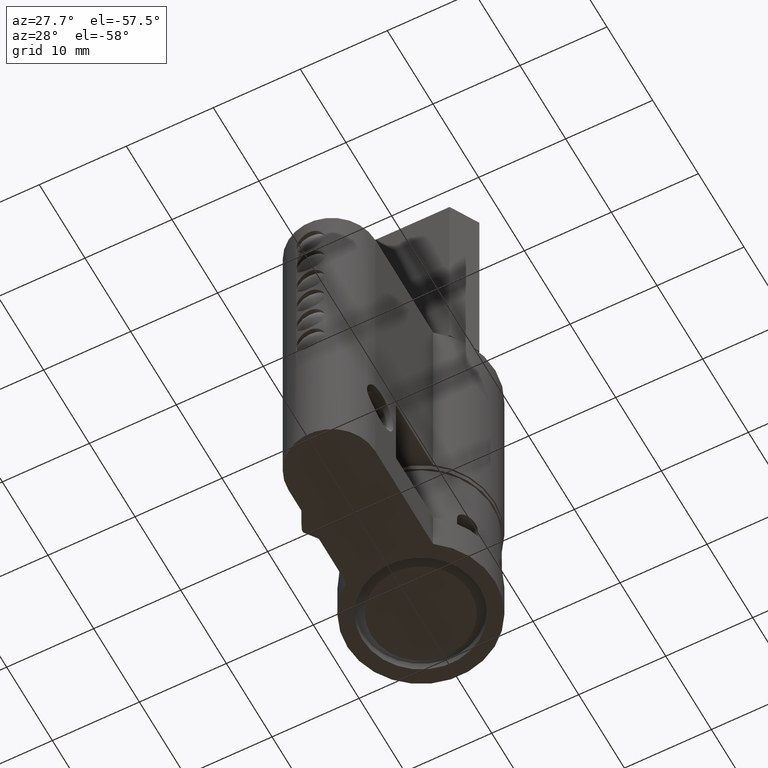
[diagram: clean part render]
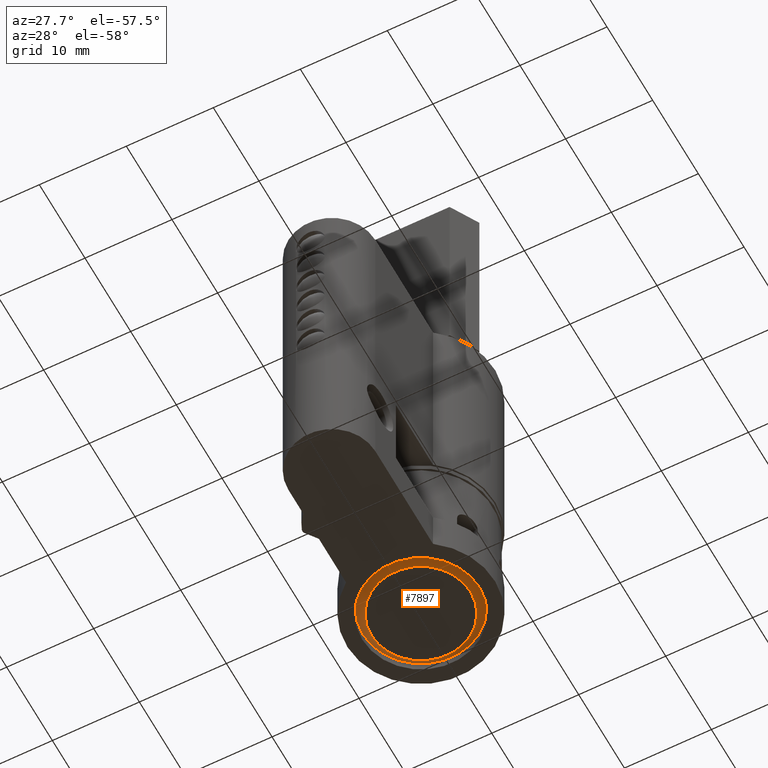
[diagram: same view with one face highlighted and labeled with its STEP entity id]
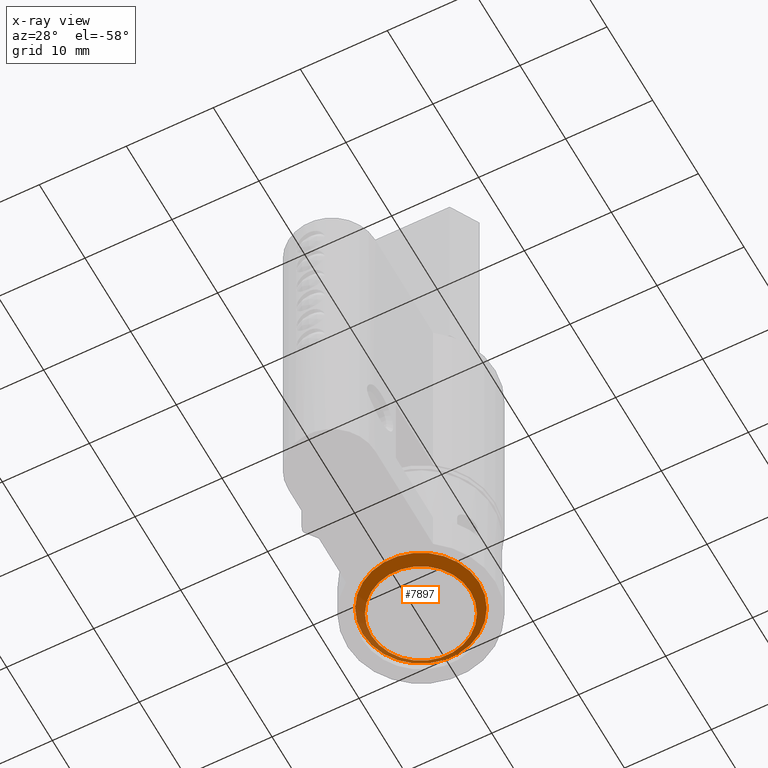
[diagram: x-ray of the same camera — body ghosted, the highlighted face saturated]
A machine part, auxiliary view. The second image highlights one B-rep face of the part: STEP entity #7897.
The next image is the same camera in x-ray: the body ghosted, the highlighted face saturated — about 0% of this face is hidden behind the body in this view.
In plain terms, the highlighted conical surface has half-angle 45 deg.
Its self-contained STEP definition (entity closure, byte-faithful):
#27 = DIRECTION ( 'NONE',  ( 0.0000000000000000000, 0.0000000000000000000, 1.000000000000000000 ) ) ;
#499 = CARTESIAN_POINT ( 'NONE',  ( 0.0000000000000000000, -4.974888019733982900E-015, -19.75000000000000400 ) ) ;
#528 = AXIS2_PLACEMENT_3D ( 'NONE', #499, #9038, #3722 ) ;
#1033 = CARTESIAN_POINT ( 'NONE',  ( 0.0000000000000000000, -4.974888019733982900E-015, -18.75000000000001100 ) ) ;
#1647 = VERTEX_POINT ( 'NONE', #13053 ) ;
#1807 = FACE_BOUND ( 'NONE', #2096, .T. ) ;
#2096 = EDGE_LOOP ( 'NONE', ( #7745 ) ) ;
#3077 = DIRECTION ( 'NONE',  ( -0.0000000000000000000, -0.0000000000000000000, -1.000000000000000000 ) ) ;
#3474 = CARTESIAN_POINT ( 'NONE',  ( -5.700000000000017900, -4.974888019733982900E-015, -19.75000000000000400 ) ) ;
#3722 = DIRECTION ( 'NONE',  ( 1.000000000000000000, 0.0000000000000000000, 0.0000000000000000000 ) ) ;
#4088 = EDGE_LOOP ( 'NONE', ( #8839 ) ) ;
#4304 = CIRCLE ( 'NONE', #10896, 5.700000000000017900 ) ;
#5401 = DIRECTION ( 'NONE',  ( -1.000000000000000000, 0.0000000000000000000, 0.0000000000000000000 ) ) ;
#5704 = EDGE_CURVE ( 'NONE', #1647, #1647, #12643, .T. ) ;
#6436 = AXIS2_PLACEMENT_3D ( 'NONE', #1033, #27, #5401 ) ;
#7086 = EDGE_CURVE ( 'NONE', #11154, #11154, #4304, .T. ) ;
#7745 = ORIENTED_EDGE ( 'NONE', *, *, #7086, .F. ) ;
#7897 = ADVANCED_FACE ( 'NONE', ( #11148, #1807 ), #8634, .T. ) ;
#8634 = CONICAL_SURFACE ( 'NONE', #528, 5.700000000000017900, 0.7853981633974427300 ) ;
#8839 = ORIENTED_EDGE ( 'NONE', *, *, #5704, .F. ) ;
#9038 = DIRECTION ( 'NONE',  ( 0.0000000000000000000, 0.0000000000000000000, 1.000000000000000000 ) ) ;
#10540 = DIRECTION ( 'NONE',  ( -1.000000000000000000, 0.0000000000000000000, 0.0000000000000000000 ) ) ;
#10896 = AXIS2_PLACEMENT_3D ( 'NONE', #13699, #3077, #10540 ) ;
#11148 = FACE_OUTER_BOUND ( 'NONE', #4088, .T. ) ;
#11154 = VERTEX_POINT ( 'NONE', #3474 ) ;
#12643 = CIRCLE ( 'NONE', #6436, 6.700000000000000200 ) ;
#13053 = CARTESIAN_POINT ( 'NONE',  ( -6.700000000000000200, -4.974888019733982900E-015, -18.75000000000001100 ) ) ;
#13699 = CARTESIAN_POINT ( 'NONE',  ( 0.0000000000000000000, -4.974888019733982900E-015, -19.75000000000000400 ) ) ;